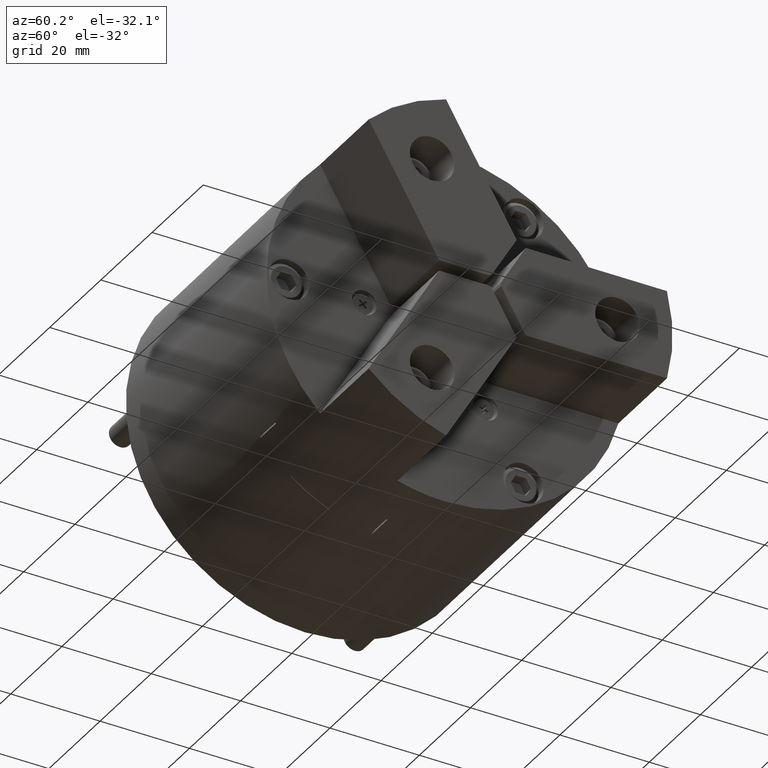
[diagram: clean part render]
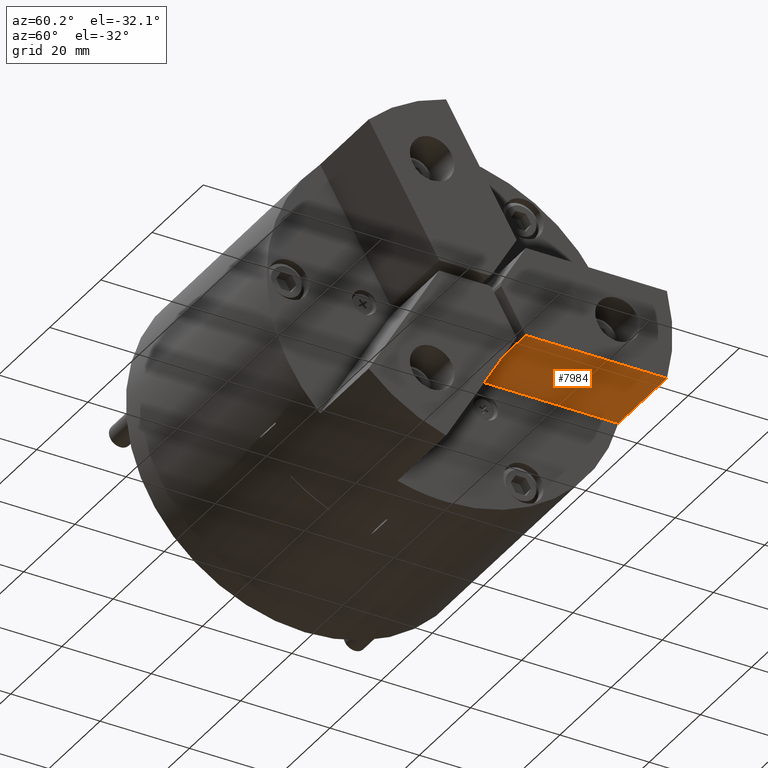
[diagram: same view with one face highlighted and labeled with its STEP entity id]
A machine part, auxiliary view. The second image highlights one B-rep face of the part: STEP entity #7984.
In plain terms, the highlighted planar face has unit normal (-0, -0, 1).
Its self-contained STEP definition (entity closure, byte-faithful):
#1960=ORIENTED_EDGE('',*,*,#3484,.T.);
#1961=ORIENTED_EDGE('',*,*,#3400,.T.);
#1962=ORIENTED_EDGE('',*,*,#3343,.F.);
#1963=ORIENTED_EDGE('',*,*,#3350,.F.);
#1964=ORIENTED_EDGE('',*,*,#3485,.T.);
#3343=EDGE_CURVE('',#4214,#4209,#4990,.T.);
#3350=EDGE_CURVE('',#4220,#4214,#4996,.T.);
#3400=EDGE_CURVE('',#4257,#4209,#5040,.T.);
#3484=EDGE_CURVE('',#4297,#4257,#5089,.T.);
#3485=EDGE_CURVE('',#4220,#4297,#5090,.T.);
#4209=VERTEX_POINT('',#12940);
#4214=VERTEX_POINT('',#12952);
#4220=VERTEX_POINT('',#12967);
#4257=VERTEX_POINT('',#13081);
#4297=VERTEX_POINT('',#13234);
#4990=LINE('',#12953,#5686);
#4996=LINE('',#12968,#5692);
#5040=LINE('',#13080,#5736);
#5089=LINE('',#13233,#5785);
#5090=LINE('',#13235,#5786);
#5686=VECTOR('',#10364,1000.);
#5692=VECTOR('',#10376,1000.);
#5736=VECTOR('',#10454,1000.);
#5785=VECTOR('',#10631,1000.);
#5786=VECTOR('',#10632,1000.);
#6221=EDGE_LOOP('',(#1960,#1961,#1962,#1963,#1964));
#6960=FACE_BOUND('',#6221,.T.);
#7630=PLANE('',#8713);
#7984=ADVANCED_FACE('',(#6960),#7630,.F.);
#8713=AXIS2_PLACEMENT_3D('',#13232,#10629,#10630);
#10364=DIRECTION('',(-1.,-8.32667268468866E-17,-4.0773630420284E-16));
#10376=DIRECTION('',(-8.32667268468868E-17,1.,2.68739262620344E-16));
#10454=DIRECTION('',(-8.32667268468868E-17,1.,2.68739262620344E-16));
#10629=DIRECTION('',(-4.0773630420284E-16,-2.68739262620344E-16,1.));
#10630=DIRECTION('',(8.32667268468868E-17,-1.,-2.68739262620344E-16));
#10631=DIRECTION('',(-8.32667268468868E-17,1.,2.68739262620344E-16));
#10632=DIRECTION('',(-1.,-8.32667268468866E-17,-4.0773630420284E-16));
#12940=CARTESIAN_POINT('',(1.3682985092573E-14,38.7300651534096,-9.99999999999999));
#12952=CARTESIAN_POINT('',(19.,38.7300651534096,-10.));
#12953=CARTESIAN_POINT('',(19.,38.7300651534096,-10.));
#12967=CARTESIAN_POINT('',(19.,7.14279427555588,-9.99999999999998));
#12968=CARTESIAN_POINT('',(19.,38.7300651534096,-9.99999999999997));
#13080=CARTESIAN_POINT('',(1.41092133817312E-14,38.7300651534096,-9.99999999999998));
#13081=CARTESIAN_POINT('',(5.59741603315434E-15,38.7298334620742,-9.99999999999998));
#13232=CARTESIAN_POINT('',(19.,38.7300651534096,-9.99999999999997));
#13233=CARTESIAN_POINT('',(1.41092133817312E-14,38.7300651534096,-9.99999999999998));
#13234=CARTESIAN_POINT('',(1.67393820377561E-14,7.14279427555588,-9.99999999999999));
#13235=CARTESIAN_POINT('',(19.,7.14279427555588,-9.99999999999998));